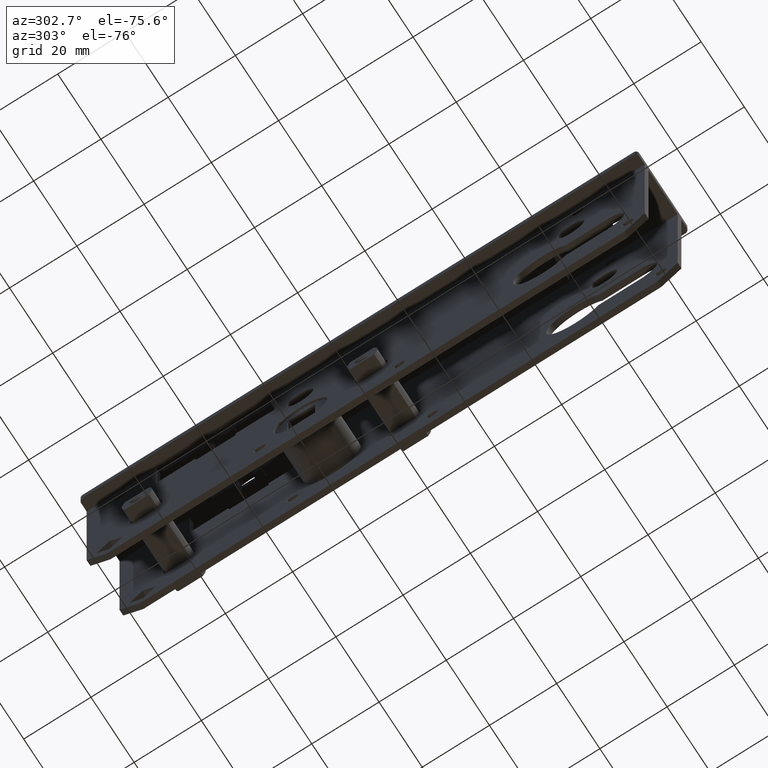
[diagram: clean part render]
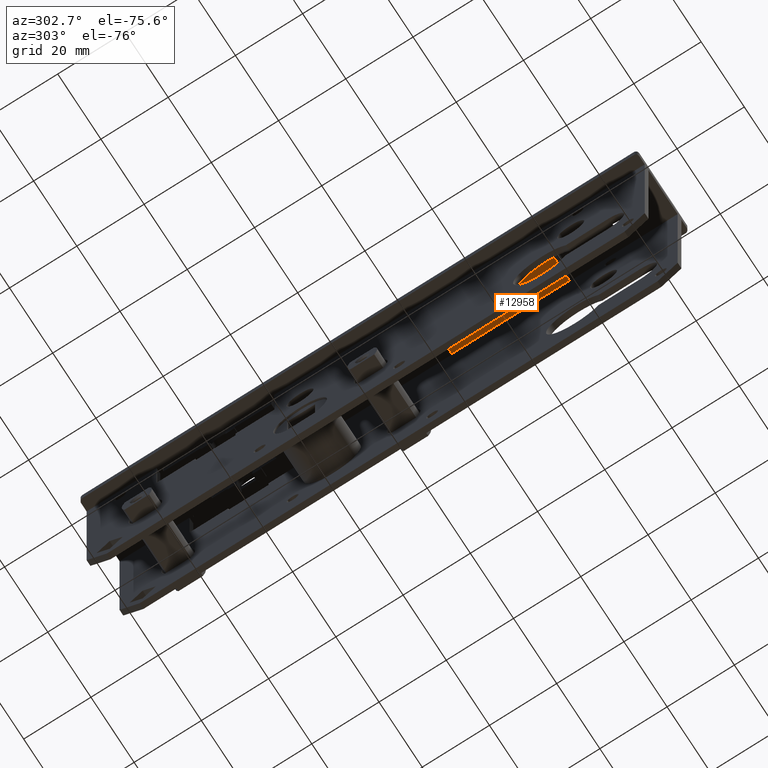
[diagram: same view with one face highlighted and labeled with its STEP entity id]
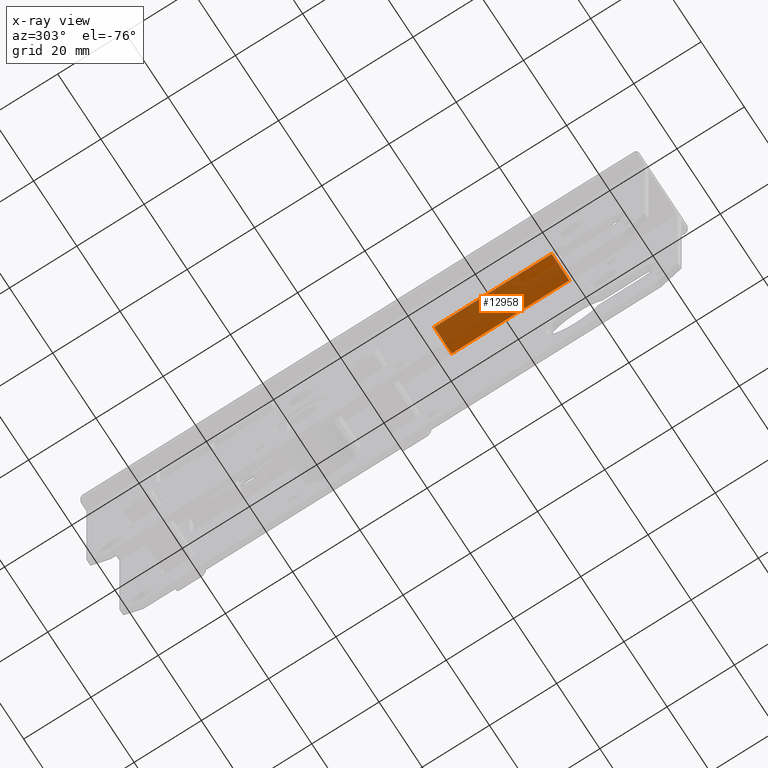
[diagram: x-ray of the same camera — body ghosted, the highlighted face saturated]
A machine part, auxiliary view. The second image highlights one B-rep face of the part: STEP entity #12958.
The next image is the same camera in x-ray: the body ghosted, the highlighted face saturated — about 73% of this face is hidden behind the body in this view.
In plain terms, the highlighted planar face has unit normal (0, 0, 1).
Its self-contained STEP definition (entity closure, byte-faithful):
#1238 = AXIS2_PLACEMENT_3D ( 'NONE', #12757, #3303, #15968 ) ;
#1527 = VERTEX_POINT ( 'NONE', #19111 ) ;
#1668 = EDGE_CURVE ( 'NONE', #16697, #1527, #9955, .T. ) ;
#2382 = LINE ( 'NONE', #11782, #7539 ) ;
#2957 = CARTESIAN_POINT ( 'NONE',  ( -4.074999999999996625, -17.50000000000000000, -8.500000000000000000 ) ) ;
#3303 = DIRECTION ( 'NONE',  ( -0.000000000000000000, 0.000000000000000000, 1.000000000000000000 ) ) ;
#4601 = LINE ( 'NONE', #4923, #13484 ) ;
#4828 = PLANE ( 'NONE',  #1238 ) ;
#4923 = CARTESIAN_POINT ( 'NONE',  ( -4.074999999999996625, -17.50000000000000000, -8.500000000000000000 ) ) ;
#5988 = EDGE_CURVE ( 'NONE', #11979, #7502, #2382, .T. ) ;
#7502 = VERTEX_POINT ( 'NONE', #2957 ) ;
#7539 = VECTOR ( 'NONE', #10514, 1000.000000000000000 ) ;
#7738 = CARTESIAN_POINT ( 'NONE',  ( -4.075000000000001066, 17.50000000000000000, -8.500000000000000000 ) ) ;
#9051 = DIRECTION ( 'NONE',  ( -1.000000000000000000, -0.000000000000000000, -0.000000000000000000 ) ) ;
#9724 = VECTOR ( 'NONE', #9924, 1000.000000000000000 ) ;
#9924 = DIRECTION ( 'NONE',  ( -1.486905836551548832E-16, 1.000000000000000000, -0.000000000000000000 ) ) ;
#9955 = LINE ( 'NONE', #11438, #9724 ) ;
#10514 = DIRECTION ( 'NONE',  ( 1.239088197126290570E-16, -1.000000000000000000, 0.000000000000000000 ) ) ;
#11395 = EDGE_LOOP ( 'NONE', ( #16587, #14865, #13329, #12413 ) ) ;
#11438 = CARTESIAN_POINT ( 'NONE',  ( 4.074999999999999289, 17.50000000000000000, -8.500000000000000000 ) ) ;
#11460 = FACE_OUTER_BOUND ( 'NONE', #11395, .T. ) ;
#11667 = LINE ( 'NONE', #16825, #19808 ) ;
#11677 = EDGE_CURVE ( 'NONE', #7502, #16697, #4601, .T. ) ;
#11782 = CARTESIAN_POINT ( 'NONE',  ( -4.075000000000001066, 17.50000000000000000, -8.500000000000000000 ) ) ;
#11979 = VERTEX_POINT ( 'NONE', #7738 ) ;
#12413 = ORIENTED_EDGE ( 'NONE', *, *, #13788, .F. ) ;
#12646 = DIRECTION ( 'NONE',  ( 1.000000000000000000, 0.000000000000000000, 0.000000000000000000 ) ) ;
#12757 = CARTESIAN_POINT ( 'NONE',  ( 0.000000000000000000, 0.000000000000000000, -8.500000000000000000 ) ) ;
#12958 = ADVANCED_FACE ( 'NONE', ( #11460 ), #4828, .F. ) ;
#13329 = ORIENTED_EDGE ( 'NONE', *, *, #5988, .F. ) ;
#13484 = VECTOR ( 'NONE', #12646, 1000.000000000000000 ) ;
#13788 = EDGE_CURVE ( 'NONE', #1527, #11979, #11667, .T. ) ;
#14865 = ORIENTED_EDGE ( 'NONE', *, *, #11677, .F. ) ;
#15968 = DIRECTION ( 'NONE',  ( 1.000000000000000000, 0.000000000000000000, 0.000000000000000000 ) ) ;
#16587 = ORIENTED_EDGE ( 'NONE', *, *, #1668, .F. ) ;
#16697 = VERTEX_POINT ( 'NONE', #19246 ) ;
#16825 = CARTESIAN_POINT ( 'NONE',  ( -4.075000000000001066, 17.50000000000000000, -8.500000000000000000 ) ) ;
#19111 = CARTESIAN_POINT ( 'NONE',  ( 4.074999999999999289, 17.50000000000000000, -8.500000000000000000 ) ) ;
#19246 = CARTESIAN_POINT ( 'NONE',  ( 4.075000000000004619, -17.50000000000000000, -8.500000000000000000 ) ) ;
#19808 = VECTOR ( 'NONE', #9051, 1000.000000000000000 ) ;